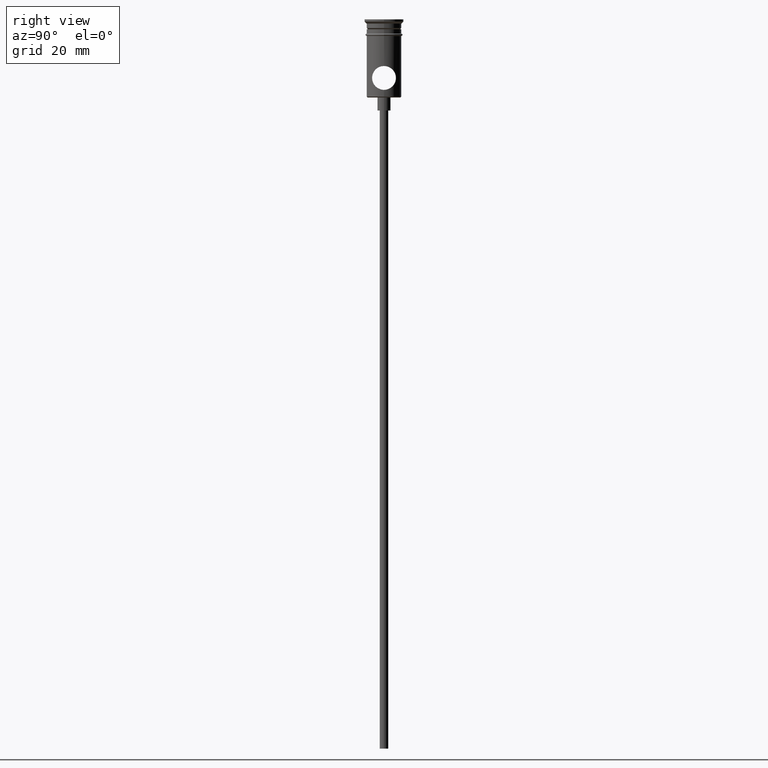
[diagram: clean part render]
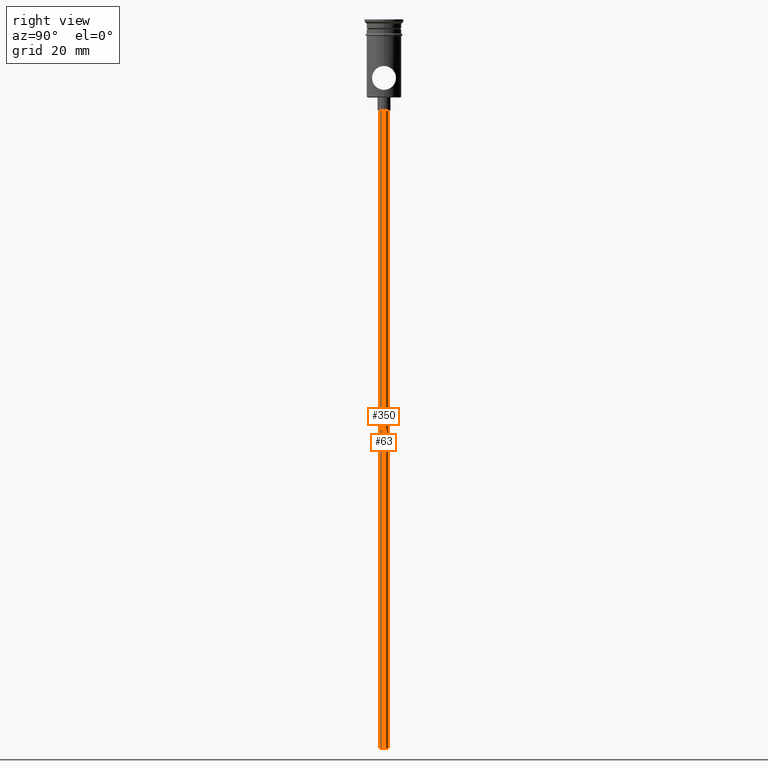
[diagram: same view with one multi-face feature highlighted, each face labeled with its STEP entity id]
A machine part, right view. The highlighted faces form ONE feature: a constant-radius fillet chain: 2 tangent blend faces with common blend radius 1 mm. The faces share edges in the B-rep.
Their STEP definitions:
[1] entity #63 (Cylinder):
#12 = CARTESIAN_POINT ( 'NONE',  ( 0.000000000000000000, 0.000000000000000000, -167.9999999999999716 ) ) ;
#18 = DIRECTION ( 'NONE',  ( -0.000000000000000000, -0.000000000000000000, 1.000000000000000000 ) ) ;
#59 = AXIS2_PLACEMENT_3D ( 'NONE', #12, #443, #1198 ) ;
#63 = ADVANCED_FACE ( 'NONE', ( #1189 ), #205, .T. ) ;
#77 = VERTEX_POINT ( 'NONE', #124 ) ;
#87 = DIRECTION ( 'NONE',  ( -0.000000000000000000, -0.000000000000000000, 1.000000000000000000 ) ) ;
#103 = LINE ( 'NONE', #1302, #790 ) ;
#113 = DIRECTION ( 'NONE',  ( 0.000000000000000000, 0.000000000000000000, -1.000000000000000000 ) ) ;
#124 = CARTESIAN_POINT ( 'NONE',  ( 0.9999999999999997780, 0.000000000000000000, -20.99999999999999645 ) ) ;
#189 = CARTESIAN_POINT ( 'NONE',  ( -0.9999999999999997780, 1.224646799147352961E-16, -167.9999999999999716 ) ) ;
#199 = DIRECTION ( 'NONE',  ( -0.000000000000000000, -0.000000000000000000, 1.000000000000000000 ) ) ;
#205 = CYLINDRICAL_SURFACE ( 'NONE', #1384, 0.9999999999999997780 ) ;
#342 = DIRECTION ( 'NONE',  ( -1.000000000000000000, 0.000000000000000000, 0.000000000000000000 ) ) ;
#372 = ORIENTED_EDGE ( 'NONE', *, *, #653, .T. ) ;
#426 = VECTOR ( 'NONE', #199, 1000.000000000000000 ) ;
#443 = DIRECTION ( 'NONE',  ( 0.000000000000000000, 0.000000000000000000, -1.000000000000000000 ) ) ;
#474 = AXIS2_PLACEMENT_3D ( 'NONE', #1312, #113, #342 ) ;
#484 = VERTEX_POINT ( 'NONE', #809 ) ;
#505 = EDGE_LOOP ( 'NONE', ( #1373, #1288, #372, #1036 ) ) ;
#561 = CARTESIAN_POINT ( 'NONE',  ( 0.000000000000000000, 0.000000000000000000, -167.9999999999999716 ) ) ;
#653 = EDGE_CURVE ( 'NONE', #942, #77, #878, .T. ) ;
#790 = VECTOR ( 'NONE', #87, 1000.000000000000000 ) ;
#809 = CARTESIAN_POINT ( 'NONE',  ( -0.9999999999999997780, 1.224646799147352961E-16, -167.9999999999999716 ) ) ;
#878 = CIRCLE ( 'NONE', #474, 0.9999999999999997780 ) ;
#880 = CIRCLE ( 'NONE', #59, 0.9999999999999997780 ) ;
#910 = DIRECTION ( 'NONE',  ( 1.000000000000000000, 0.000000000000000000, 0.000000000000000000 ) ) ;
#928 = LINE ( 'NONE', #189, #426 ) ;
#942 = VERTEX_POINT ( 'NONE', #1126 ) ;
#1020 = CARTESIAN_POINT ( 'NONE',  ( 0.9999999999999997780, 0.000000000000000000, -167.9999999999999716 ) ) ;
#1036 = ORIENTED_EDGE ( 'NONE', *, *, #1401, .F. ) ;
#1116 = EDGE_CURVE ( 'NONE', #484, #942, #928, .T. ) ;
#1126 = CARTESIAN_POINT ( 'NONE',  ( -0.9999999999999997780, 1.224646799147352961E-16, -20.99999999999999645 ) ) ;
#1143 = EDGE_CURVE ( 'NONE', #484, #1309, #880, .T. ) ;
#1189 = FACE_OUTER_BOUND ( 'NONE', #505, .T. ) ;
#1198 = DIRECTION ( 'NONE',  ( -1.000000000000000000, 0.000000000000000000, 0.000000000000000000 ) ) ;
#1288 = ORIENTED_EDGE ( 'NONE', *, *, #1116, .T. ) ;
#1302 = CARTESIAN_POINT ( 'NONE',  ( 0.9999999999999997780, 0.000000000000000000, -167.9999999999999716 ) ) ;
#1309 = VERTEX_POINT ( 'NONE', #1020 ) ;
#1312 = CARTESIAN_POINT ( 'NONE',  ( 0.000000000000000000, 0.000000000000000000, -20.99999999999999645 ) ) ;
#1373 = ORIENTED_EDGE ( 'NONE', *, *, #1143, .F. ) ;
#1384 = AXIS2_PLACEMENT_3D ( 'NONE', #561, #18, #910 ) ;
#1401 = EDGE_CURVE ( 'NONE', #1309, #77, #103, .T. ) ;
[2] entity #350 (Cylinder):
#21 = ORIENTED_EDGE ( 'NONE', *, *, #937, .T. ) ;
#71 = DIRECTION ( 'NONE',  ( -1.000000000000000000, 0.000000000000000000, 0.000000000000000000 ) ) ;
#77 = VERTEX_POINT ( 'NONE', #124 ) ;
#87 = DIRECTION ( 'NONE',  ( -0.000000000000000000, -0.000000000000000000, 1.000000000000000000 ) ) ;
#99 = AXIS2_PLACEMENT_3D ( 'NONE', #861, #417, #1393 ) ;
#101 = CYLINDRICAL_SURFACE ( 'NONE', #99, 0.9999999999999997780 ) ;
#102 = AXIS2_PLACEMENT_3D ( 'NONE', #1348, #1023, #687 ) ;
#103 = LINE ( 'NONE', #1302, #790 ) ;
#124 = CARTESIAN_POINT ( 'NONE',  ( 0.9999999999999997780, 0.000000000000000000, -20.99999999999999645 ) ) ;
#149 = CIRCLE ( 'NONE', #102, 0.9999999999999997780 ) ;
#189 = CARTESIAN_POINT ( 'NONE',  ( -0.9999999999999997780, 1.224646799147352961E-16, -167.9999999999999716 ) ) ;
#199 = DIRECTION ( 'NONE',  ( -0.000000000000000000, -0.000000000000000000, 1.000000000000000000 ) ) ;
#281 = CARTESIAN_POINT ( 'NONE',  ( 0.000000000000000000, 0.000000000000000000, -167.9999999999999716 ) ) ;
#350 = ADVANCED_FACE ( 'NONE', ( #1179 ), #101, .T. ) ;
#358 = CIRCLE ( 'NONE', #856, 0.9999999999999997780 ) ;
#417 = DIRECTION ( 'NONE',  ( -0.000000000000000000, -0.000000000000000000, 1.000000000000000000 ) ) ;
#426 = VECTOR ( 'NONE', #199, 1000.000000000000000 ) ;
#484 = VERTEX_POINT ( 'NONE', #809 ) ;
#500 = EDGE_LOOP ( 'NONE', ( #714, #874, #656, #21 ) ) ;
#576 = EDGE_CURVE ( 'NONE', #1309, #484, #358, .T. ) ;
#656 = ORIENTED_EDGE ( 'NONE', *, *, #1401, .T. ) ;
#687 = DIRECTION ( 'NONE',  ( -1.000000000000000000, 0.000000000000000000, 0.000000000000000000 ) ) ;
#714 = ORIENTED_EDGE ( 'NONE', *, *, #1116, .F. ) ;
#790 = VECTOR ( 'NONE', #87, 1000.000000000000000 ) ;
#809 = CARTESIAN_POINT ( 'NONE',  ( -0.9999999999999997780, 1.224646799147352961E-16, -167.9999999999999716 ) ) ;
#856 = AXIS2_PLACEMENT_3D ( 'NONE', #281, #1392, #71 ) ;
#861 = CARTESIAN_POINT ( 'NONE',  ( 0.000000000000000000, 0.000000000000000000, -167.9999999999999716 ) ) ;
#874 = ORIENTED_EDGE ( 'NONE', *, *, #576, .F. ) ;
#928 = LINE ( 'NONE', #189, #426 ) ;
#937 = EDGE_CURVE ( 'NONE', #77, #942, #149, .T. ) ;
#942 = VERTEX_POINT ( 'NONE', #1126 ) ;
#1020 = CARTESIAN_POINT ( 'NONE',  ( 0.9999999999999997780, 0.000000000000000000, -167.9999999999999716 ) ) ;
#1023 = DIRECTION ( 'NONE',  ( 0.000000000000000000, 0.000000000000000000, -1.000000000000000000 ) ) ;
#1116 = EDGE_CURVE ( 'NONE', #484, #942, #928, .T. ) ;
#1126 = CARTESIAN_POINT ( 'NONE',  ( -0.9999999999999997780, 1.224646799147352961E-16, -20.99999999999999645 ) ) ;
#1179 = FACE_OUTER_BOUND ( 'NONE', #500, .T. ) ;
#1302 = CARTESIAN_POINT ( 'NONE',  ( 0.9999999999999997780, 0.000000000000000000, -167.9999999999999716 ) ) ;
#1309 = VERTEX_POINT ( 'NONE', #1020 ) ;
#1348 = CARTESIAN_POINT ( 'NONE',  ( 0.000000000000000000, 0.000000000000000000, -20.99999999999999645 ) ) ;
#1392 = DIRECTION ( 'NONE',  ( 0.000000000000000000, 0.000000000000000000, -1.000000000000000000 ) ) ;
#1393 = DIRECTION ( 'NONE',  ( 1.000000000000000000, 0.000000000000000000, 0.000000000000000000 ) ) ;
#1401 = EDGE_CURVE ( 'NONE', #1309, #77, #103, .T. ) ;